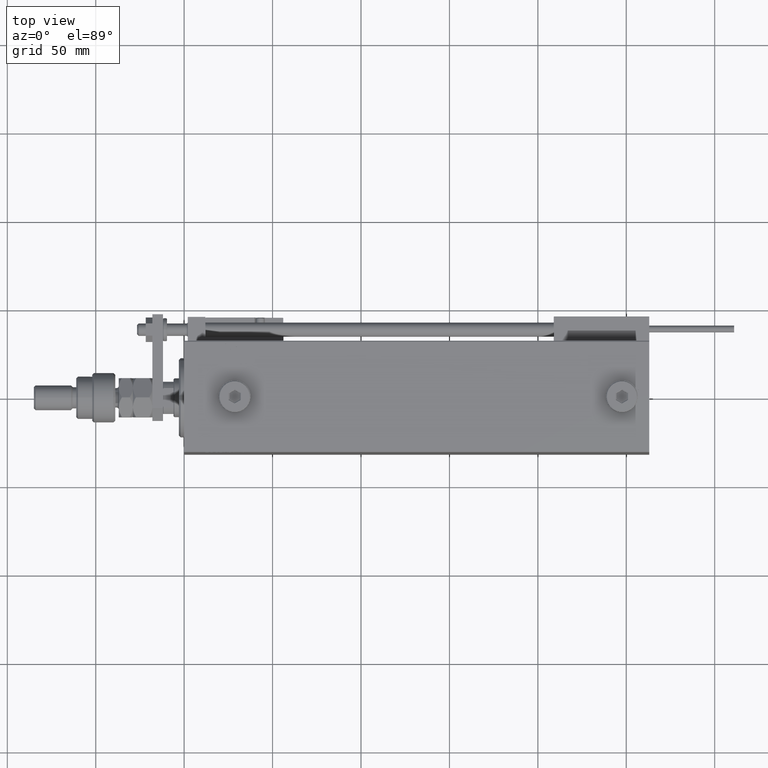
[diagram: clean part render]
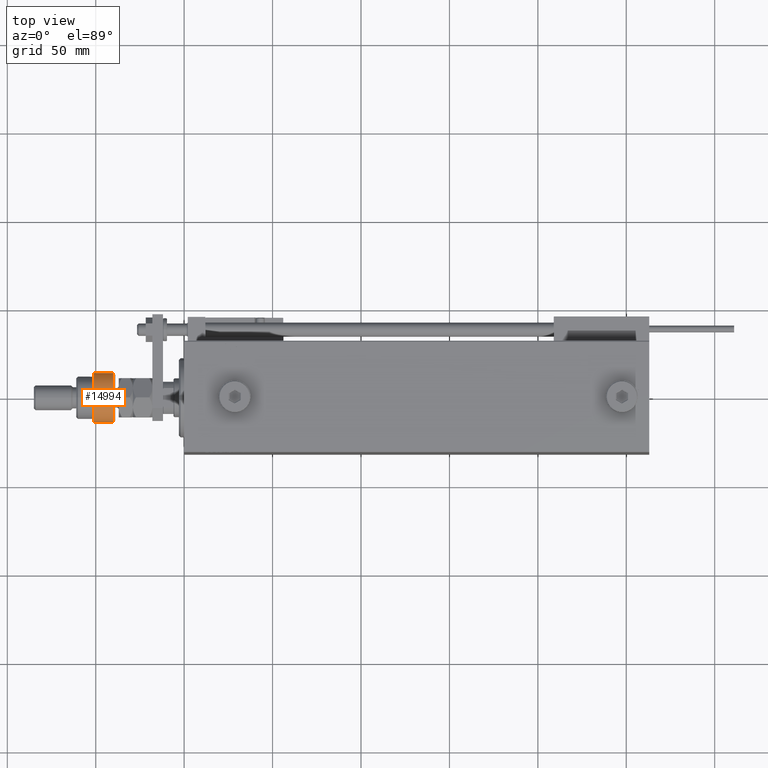
[diagram: same view with one face highlighted and labeled with its STEP entity id]
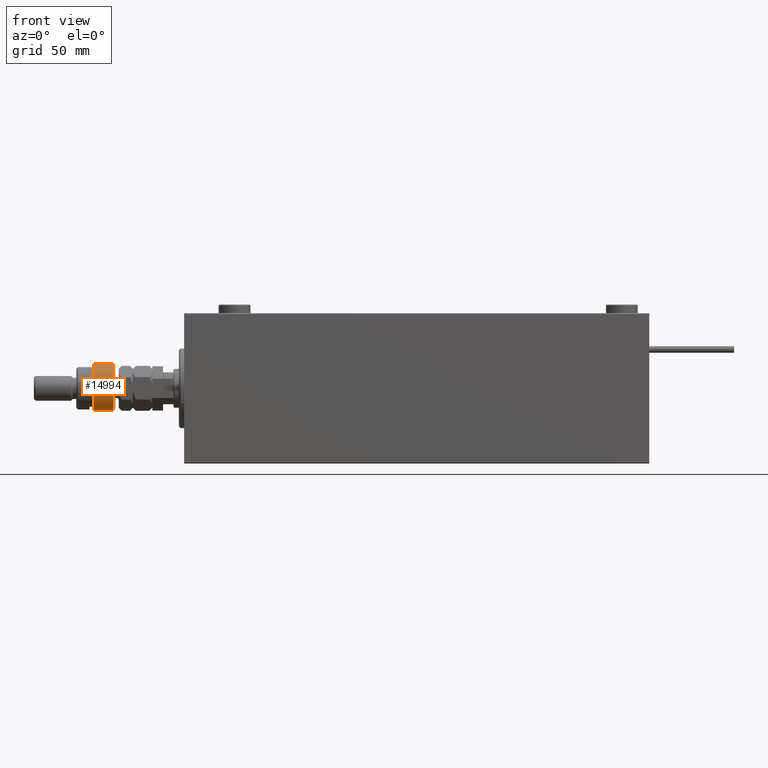
[diagram: same view with one face highlighted and labeled with its STEP entity id]
A machine part, top view. The second image highlights one B-rep face of the part: STEP entity #14994.
A second angle (front view) of the same face is appended — the face is thin or edge-on in the first view.
In plain terms, the highlighted cylindrical surface (edge-blend (fillet) strip) has radius 14 mm, axis along (1, -0, -0).
Its self-contained STEP definition (entity closure, byte-faithful):
#1109 = CIRCLE ( 'NONE', #40629, 14.00000000000000000 ) ;
#3094 = EDGE_LOOP ( 'NONE', ( #31403, #7648, #46911, #8302, #38839 ) ) ;
#3125 = EDGE_CURVE ( 'NONE', #21262, #22067, #44864, .T. ) ;
#3747 = CARTESIAN_POINT ( 'NONE',  ( 0.000000000000000000, 0.000000000000000000, 1.000000000000032196 ) ) ;
#5752 = FACE_OUTER_BOUND ( 'NONE', #3094, .T. ) ;
#7001 = AXIS2_PLACEMENT_3D ( 'NONE', #3747, #54053, #24890 ) ;
#7022 = CARTESIAN_POINT ( 'NONE',  ( -12.64911064067351809, 6.000000000000000000, 12.00000000000003553 ) ) ;
#7648 = ORIENTED_EDGE ( 'NONE', *, *, #30580, .T. ) ;
#8302 = ORIENTED_EDGE ( 'NONE', *, *, #51298, .T. ) ;
#8794 = CARTESIAN_POINT ( 'NONE',  ( 0.000000000000000000, 0.000000000000000000, 12.00000000000003553 ) ) ;
#10148 = DIRECTION ( 'NONE',  ( -1.000000000000000000, 0.000000000000000000, 0.000000000000000000 ) ) ;
#10770 = DIRECTION ( 'NONE',  ( -0.000000000000000000, -0.000000000000000000, -1.000000000000000000 ) ) ;
#12488 = CARTESIAN_POINT ( 'NONE',  ( -12.64911064067351809, -5.999999999999999112, 1.000000000000035527 ) ) ;
#13176 = VECTOR ( 'NONE', #21661, 1000.000000000000000 ) ;
#13702 = CARTESIAN_POINT ( 'NONE',  ( -12.64911064067351809, -5.999999999999999112, 14.50000000000000000 ) ) ;
#14485 = VECTOR ( 'NONE', #10770, 1000.000000000000000 ) ;
#14625 = CARTESIAN_POINT ( 'NONE',  ( -12.64911064067351809, 6.000000000000000000, 14.50000000000000000 ) ) ;
#14994 = ADVANCED_FACE ( 'NONE', ( #5752 ), #22505, .T. ) ;
#17743 = CARTESIAN_POINT ( 'NONE',  ( -12.64911064067351809, 6.000000000000000000, 1.000000000000035527 ) ) ;
#18510 = CARTESIAN_POINT ( 'NONE',  ( 0.000000000000000000, 0.000000000000000000, 1.000000000000032196 ) ) ;
#20655 = AXIS2_PLACEMENT_3D ( 'NONE', #47264, #35413, #10148 ) ;
#21262 = VERTEX_POINT ( 'NONE', #7022 ) ;
#21661 = DIRECTION ( 'NONE',  ( -0.000000000000000000, -0.000000000000000000, -1.000000000000000000 ) ) ;
#22067 = VERTEX_POINT ( 'NONE', #17743 ) ;
#22505 = CYLINDRICAL_SURFACE ( 'NONE', #20655, 14.00000000000000000 ) ;
#24890 = DIRECTION ( 'NONE',  ( 1.000000000000000000, 0.000000000000000000, 0.000000000000000000 ) ) ;
#25538 = DIRECTION ( 'NONE',  ( 0.000000000000000000, 0.000000000000000000, -1.000000000000000000 ) ) ;
#28068 = CARTESIAN_POINT ( 'NONE',  ( 14.00000000000000000, 0.000000000000000000, 1.000000000000032196 ) ) ;
#28821 = VERTEX_POINT ( 'NONE', #28068 ) ;
#30580 = EDGE_CURVE ( 'NONE', #21262, #53572, #1109, .T. ) ;
#30672 = CIRCLE ( 'NONE', #7001, 14.00000000000000000 ) ;
#30793 = CIRCLE ( 'NONE', #36051, 14.00000000000000000 ) ;
#31403 = ORIENTED_EDGE ( 'NONE', *, *, #3125, .F. ) ;
#33889 = VERTEX_POINT ( 'NONE', #12488 ) ;
#34600 = DIRECTION ( 'NONE',  ( 1.000000000000000000, 0.000000000000000000, 0.000000000000000000 ) ) ;
#35413 = DIRECTION ( 'NONE',  ( -0.000000000000000000, -0.000000000000000000, -1.000000000000000000 ) ) ;
#35547 = DIRECTION ( 'NONE',  ( 1.000000000000000000, 0.000000000000000000, 0.000000000000000000 ) ) ;
#36051 = AXIS2_PLACEMENT_3D ( 'NONE', #18510, #47396, #35547 ) ;
#36945 = CARTESIAN_POINT ( 'NONE',  ( -12.64911064067351809, -5.999999999999999112, 12.00000000000003553 ) ) ;
#38839 = ORIENTED_EDGE ( 'NONE', *, *, #49134, .T. ) ;
#40629 = AXIS2_PLACEMENT_3D ( 'NONE', #8794, #25538, #34600 ) ;
#43110 = LINE ( 'NONE', #13702, #13176 ) ;
#44864 = LINE ( 'NONE', #14625, #14485 ) ;
#46911 = ORIENTED_EDGE ( 'NONE', *, *, #50562, .T. ) ;
#47264 = CARTESIAN_POINT ( 'NONE',  ( 0.000000000000000000, 0.000000000000000000, 13.00000000000000000 ) ) ;
#47396 = DIRECTION ( 'NONE',  ( -0.000000000000000000, -0.000000000000000000, 1.000000000000000000 ) ) ;
#49134 = EDGE_CURVE ( 'NONE', #28821, #22067, #30672, .T. ) ;
#50562 = EDGE_CURVE ( 'NONE', #53572, #33889, #43110, .T. ) ;
#51298 = EDGE_CURVE ( 'NONE', #33889, #28821, #30793, .T. ) ;
#53572 = VERTEX_POINT ( 'NONE', #36945 ) ;
#54053 = DIRECTION ( 'NONE',  ( -0.000000000000000000, -0.000000000000000000, 1.000000000000000000 ) ) ;